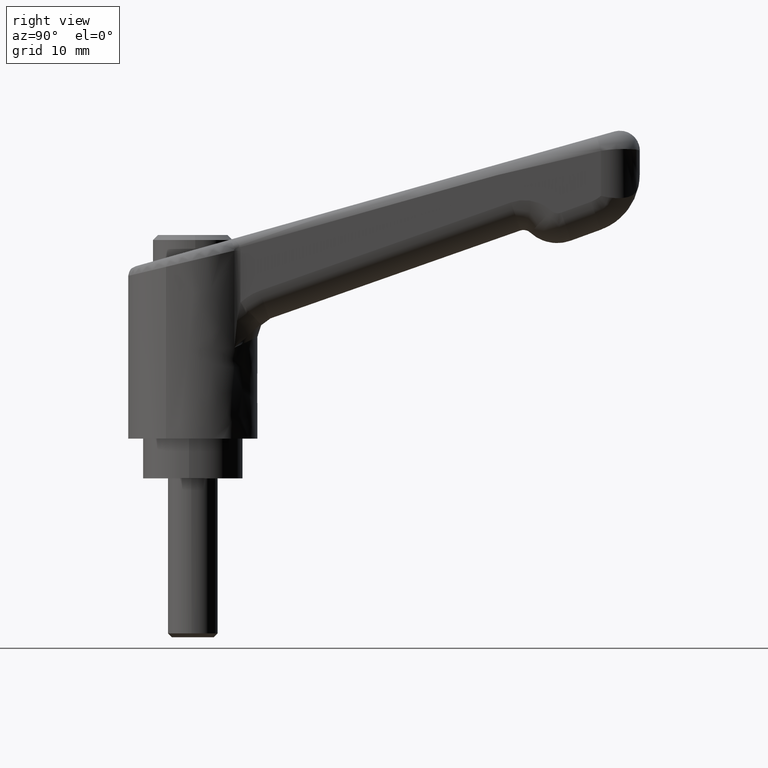
[diagram: clean part render]
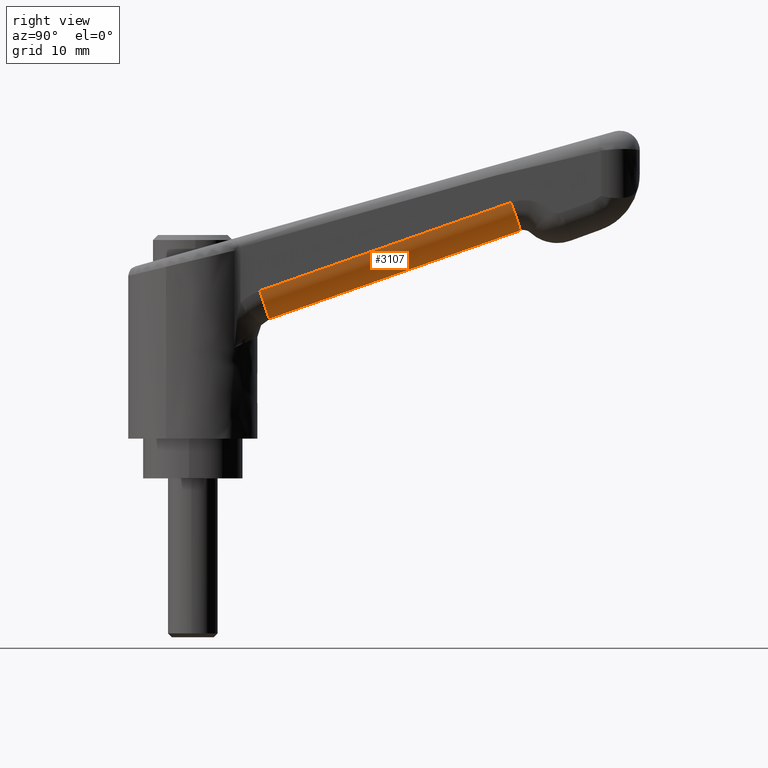
[diagram: same view with one face highlighted and labeled with its STEP entity id]
A machine part, right view. The second image highlights one B-rep face of the part: STEP entity #3107.
In plain terms, the highlighted face is a freeform B-spline surface patch.
Its self-contained STEP definition (entity closure, byte-faithful):
#3016=CARTESIAN_POINT('',(32.033624131454147,-4.184544603978870,27.780703603211851));
#3017=VERTEX_POINT('',#3016);
#3018=CARTESIAN_POINT('',(32.967611560764503,-1.185174163264024,24.950669955959750));
#3019=VERTEX_POINT('',#3018);
#3020=CARTESIAN_POINT('',(32.033624131454147,-4.184544603978872,27.780703603211862));
#3021=CARTESIAN_POINT('',(33.021932808937493,-4.164294201575123,24.969777072371624));
#3022=CARTESIAN_POINT('',(32.967611560764503,-1.185174163264024,24.950669955959750));
#3030=(BOUNDED_CURVE()B_SPLINE_CURVE(2,(#3020,#3021,#3022),.UNSPECIFIED.,.F.,.U.)CURVE()GEOMETRIC_REPRESENTATION_ITEM()QUASI_UNIFORM_CURVE()RATIONAL_B_SPLINE_CURVE((1.0,0.709505970468123,1.0))REPRESENTATION_ITEM(''));
#3031=EDGE_CURVE('',#3017,#3019,#3030,.T.);
#3063=CARTESIAN_POINT('',(32.640148737976659,-4.171088699958076,28.077297101370210));
#3064=CARTESIAN_POINT('',(6.055426683339873,-4.715808514388045,18.726308378565300));
#3065=CARTESIAN_POINT('',(33.708568360645657,-4.233428524874397,25.043427442290362));
#3066=CARTESIAN_POINT('',(7.123846306008884,-4.778148339304367,15.692438719485462));
#3067=CARTESIAN_POINT('',(33.596182045983717,-1.021012539065058,25.175808341793712));
#3068=CARTESIAN_POINT('',(7.011459991346953,-1.565732353495028,15.824819618988800));
#3076=(BOUNDED_SURFACE()B_SPLINE_SURFACE(1,2,((#3063,#3065,#3067),(#3064,#3066,#3068)),.UNSPECIFIED.,.F.,.F.,.U.)B_SPLINE_SURFACE_WITH_KNOTS((2,2),(3,3),(0.0,28.186613072388610),(0.0,5.217748499531195),.UNSPECIFIED.)GEOMETRIC_REPRESENTATION_ITEM()RATIONAL_B_SPLINE_SURFACE(((1.0,0.681998360062498,1.0),(1.0,0.681998360062498,1.0)))REPRESENTATION_ITEM('')SURFACE());
#3077=CARTESIAN_POINT('',(6.729902961068190,-4.703016765244750,18.880297918210101));
#3078=VERTEX_POINT('',#3077);
#3079=CARTESIAN_POINT('',(7.663890390378520,-1.703646324529835,16.050264270958049));
#3080=VERTEX_POINT('',#3079);
#3081=CARTESIAN_POINT('',(6.729902961068193,-4.703016765244752,18.880297918210101));
#3082=CARTESIAN_POINT('',(7.718211638551508,-4.682766362841001,16.069371387369852));
#3083=CARTESIAN_POINT('',(7.663890390378520,-1.703646324529835,16.050264270958049));
#3091=(BOUNDED_CURVE()B_SPLINE_CURVE(2,(#3081,#3082,#3083),.UNSPECIFIED.,.F.,.U.)CURVE()GEOMETRIC_REPRESENTATION_ITEM()QUASI_UNIFORM_CURVE()RATIONAL_B_SPLINE_CURVE((1.0,0.709505970468123,1.0))REPRESENTATION_ITEM(''));
#3092=EDGE_CURVE('',#3078,#3080,#3091,.T.);
#3093=ORIENTED_EDGE('',*,*,#3092,.T.);
#3094=CARTESIAN_POINT('',(32.967611560764503,-1.185174163264024,24.950669955959750));
#3095=CARTESIAN_POINT('',(7.663890390378520,-1.703646324529835,16.050264270958049));
#3096=QUASI_UNIFORM_CURVE('',1,(#3094,#3095),.UNSPECIFIED.,.F.,.U.);
#3097=EDGE_CURVE('',#3019,#3080,#3096,.T.);
#3098=ORIENTED_EDGE('',*,*,#3097,.F.);
#3099=ORIENTED_EDGE('',*,*,#3031,.F.);
#3100=CARTESIAN_POINT('',(6.729902961068190,-4.703016765244750,18.880297918210101));
#3101=CARTESIAN_POINT('',(32.033624131454147,-4.184544603978870,27.780703603211851));
#3102=QUASI_UNIFORM_CURVE('',1,(#3100,#3101),.UNSPECIFIED.,.F.,.U.);
#3103=EDGE_CURVE('',#3078,#3017,#3102,.T.);
#3104=ORIENTED_EDGE('',*,*,#3103,.F.);
#3105=EDGE_LOOP('',(#3093,#3098,#3099,#3104));
#3106=FACE_OUTER_BOUND('',#3105,.T.);
#3107=ADVANCED_FACE('',(#3106),#3076,.T.);